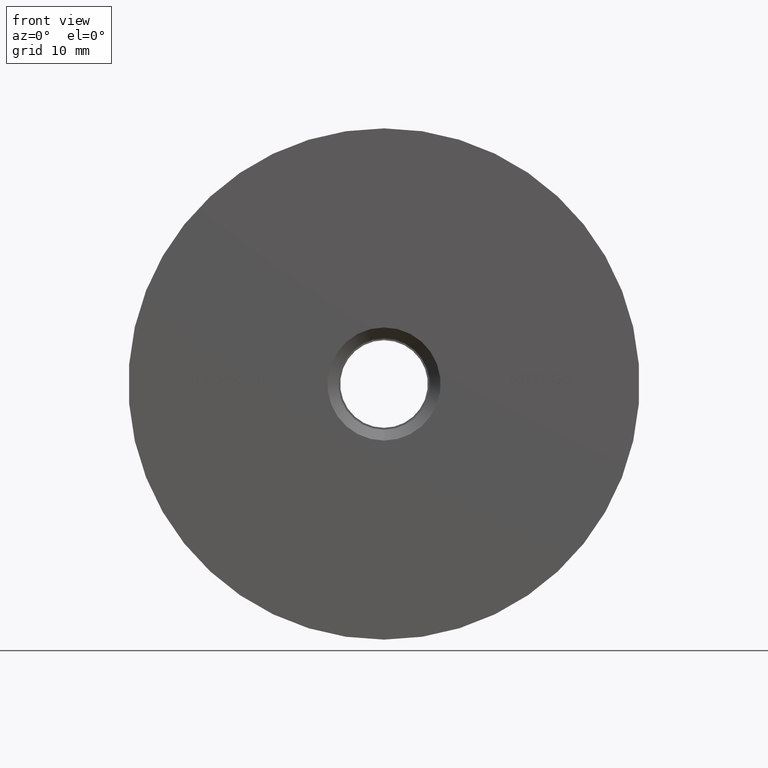
[diagram: clean part render]
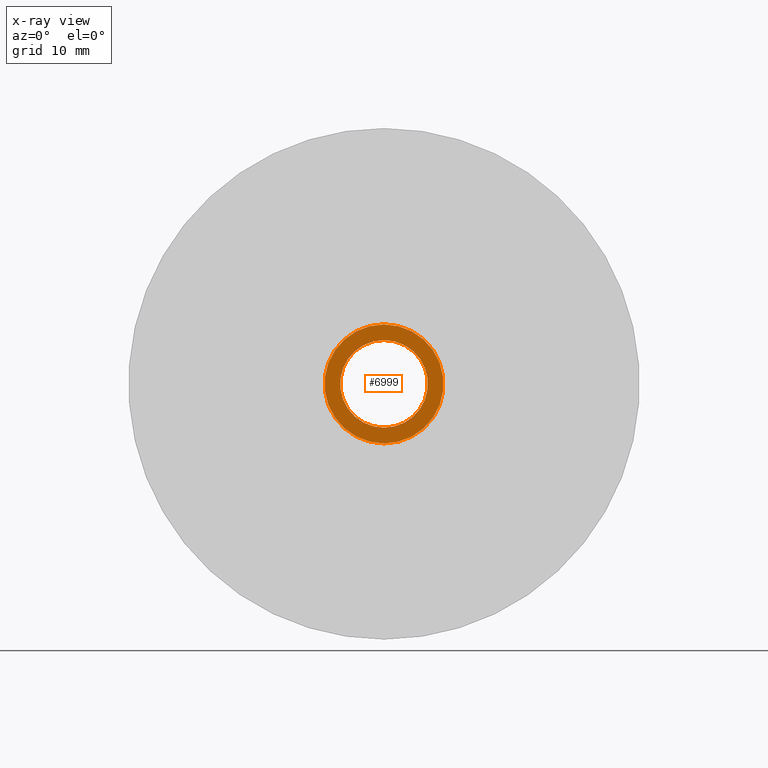
[diagram: x-ray — body ghosted, one internal face saturated and labeled with its STEP entity id]
A machine part, front view, then the same camera in x-ray: the body is ghosted and one INTERNAL B-rep face — a face not visible from any outside direction — is saturated and labeled: STEP entity #6999.
In plain terms, the highlighted planar face has unit normal (0, 1, 0).
Its self-contained STEP definition (entity closure, byte-faithful):
#30 = CARTESIAN_POINT ( 'NONE',  ( 0.000000000000000000, 0.000000000000000000, -6.000000000000000888 ) ) ;
#1577 = DIRECTION ( 'NONE',  ( 0.000000000000000000, 0.000000000000000000, 1.000000000000000000 ) ) ;
#1842 = ORIENTED_EDGE ( 'NONE', *, *, #2666, .T. ) ;
#1958 = FACE_OUTER_BOUND ( 'NONE', #12212, .T. ) ;
#2378 = PLANE ( 'NONE',  #8030 ) ;
#2666 = EDGE_CURVE ( 'NONE', #11063, #10237, #8488, .T. ) ;
#2882 = EDGE_LOOP ( 'NONE', ( #3036, #1842 ) ) ;
#3036 = ORIENTED_EDGE ( 'NONE', *, *, #6803, .T. ) ;
#4591 = CIRCLE ( 'NONE', #9496, 8.150000000000000355 ) ;
#4606 = EDGE_CURVE ( 'NONE', #5205, #7304, #4591, .T. ) ;
#4714 = CARTESIAN_POINT ( 'NONE',  ( 9.980871413050929957E-16, 0.000000000000000000, 8.150000000000000355 ) ) ;
#4735 = DIRECTION ( 'NONE',  ( 0.000000000000000000, 0.000000000000000000, 1.000000000000000000 ) ) ;
#4771 = DIRECTION ( 'NONE',  ( 0.000000000000000000, 1.000000000000000000, 0.000000000000000000 ) ) ;
#4949 = CIRCLE ( 'NONE', #8287, 6.000000000000000888 ) ;
#5078 = CARTESIAN_POINT ( 'NONE',  ( 0.000000000000000000, 0.000000000000000000, 0.000000000000000000 ) ) ;
#5181 = CARTESIAN_POINT ( 'NONE',  ( 0.000000000000000000, 0.000000000000000000, 0.000000000000000000 ) ) ;
#5205 = VERTEX_POINT ( 'NONE', #10925 ) ;
#6643 = CARTESIAN_POINT ( 'NONE',  ( 0.000000000000000000, 0.000000000000000000, 0.000000000000000000 ) ) ;
#6725 = AXIS2_PLACEMENT_3D ( 'NONE', #5078, #7069, #7884 ) ;
#6803 = EDGE_CURVE ( 'NONE', #10237, #11063, #4949, .T. ) ;
#6981 = DIRECTION ( 'NONE',  ( 0.000000000000000000, 1.000000000000000000, 0.000000000000000000 ) ) ;
#6999 = ADVANCED_FACE ( 'NONE', ( #1958, #9468 ), #2378, .F. ) ;
#7069 = DIRECTION ( 'NONE',  ( 0.000000000000000000, 1.000000000000000000, 0.000000000000000000 ) ) ;
#7142 = CIRCLE ( 'NONE', #11813, 8.150000000000000355 ) ;
#7261 = DIRECTION ( 'NONE',  ( 0.000000000000000000, 1.000000000000000000, 0.000000000000000000 ) ) ;
#7304 = VERTEX_POINT ( 'NONE', #4714 ) ;
#7868 = DIRECTION ( 'NONE',  ( 0.000000000000000000, 0.000000000000000000, 1.000000000000000000 ) ) ;
#7884 = DIRECTION ( 'NONE',  ( 0.000000000000000000, 0.000000000000000000, 1.000000000000000000 ) ) ;
#7955 = CARTESIAN_POINT ( 'NONE',  ( 0.000000000000000000, 0.000000000000000000, 0.000000000000000000 ) ) ;
#8030 = AXIS2_PLACEMENT_3D ( 'NONE', #9150, #10098, #11045 ) ;
#8287 = AXIS2_PLACEMENT_3D ( 'NONE', #7955, #6981, #7868 ) ;
#8488 = CIRCLE ( 'NONE', #6725, 6.000000000000000888 ) ;
#8776 = ORIENTED_EDGE ( 'NONE', *, *, #8811, .F. ) ;
#8811 = EDGE_CURVE ( 'NONE', #7304, #5205, #7142, .T. ) ;
#9150 = CARTESIAN_POINT ( 'NONE',  ( 0.000000000000000000, 0.000000000000000000, 0.000000000000000000 ) ) ;
#9468 = FACE_BOUND ( 'NONE', #2882, .T. ) ;
#9496 = AXIS2_PLACEMENT_3D ( 'NONE', #6643, #4771, #4735 ) ;
#9625 = CARTESIAN_POINT ( 'NONE',  ( 7.347880794884120722E-16, 0.000000000000000000, 6.000000000000000888 ) ) ;
#10098 = DIRECTION ( 'NONE',  ( 0.000000000000000000, 1.000000000000000000, 0.000000000000000000 ) ) ;
#10237 = VERTEX_POINT ( 'NONE', #30 ) ;
#10925 = CARTESIAN_POINT ( 'NONE',  ( 0.000000000000000000, 0.000000000000000000, -8.150000000000000355 ) ) ;
#11045 = DIRECTION ( 'NONE',  ( 0.000000000000000000, -0.000000000000000000, 1.000000000000000000 ) ) ;
#11063 = VERTEX_POINT ( 'NONE', #9625 ) ;
#11813 = AXIS2_PLACEMENT_3D ( 'NONE', #5181, #7261, #1577 ) ;
#11958 = ORIENTED_EDGE ( 'NONE', *, *, #4606, .F. ) ;
#12212 = EDGE_LOOP ( 'NONE', ( #11958, #8776 ) ) ;